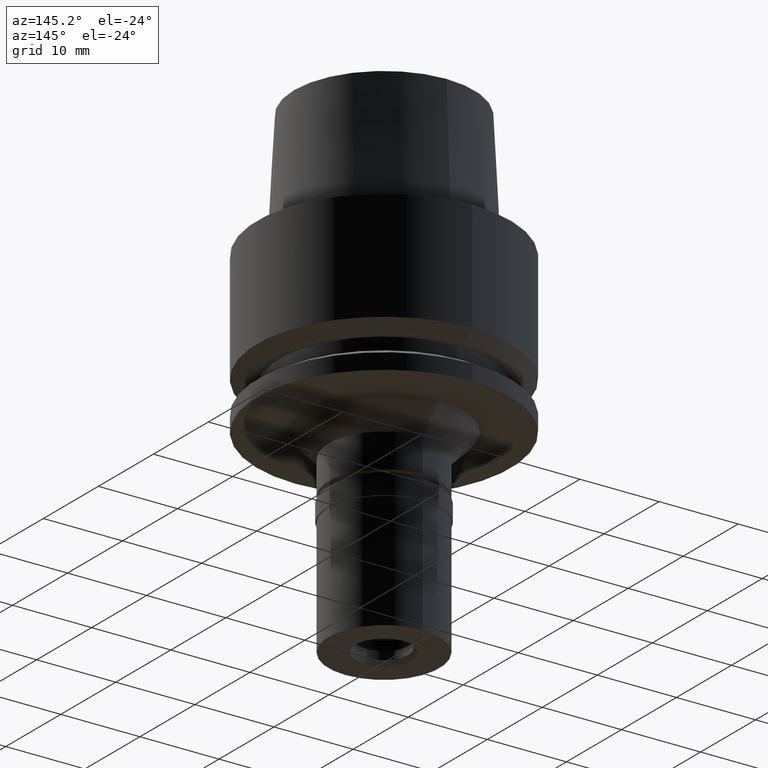
[diagram: clean part render]
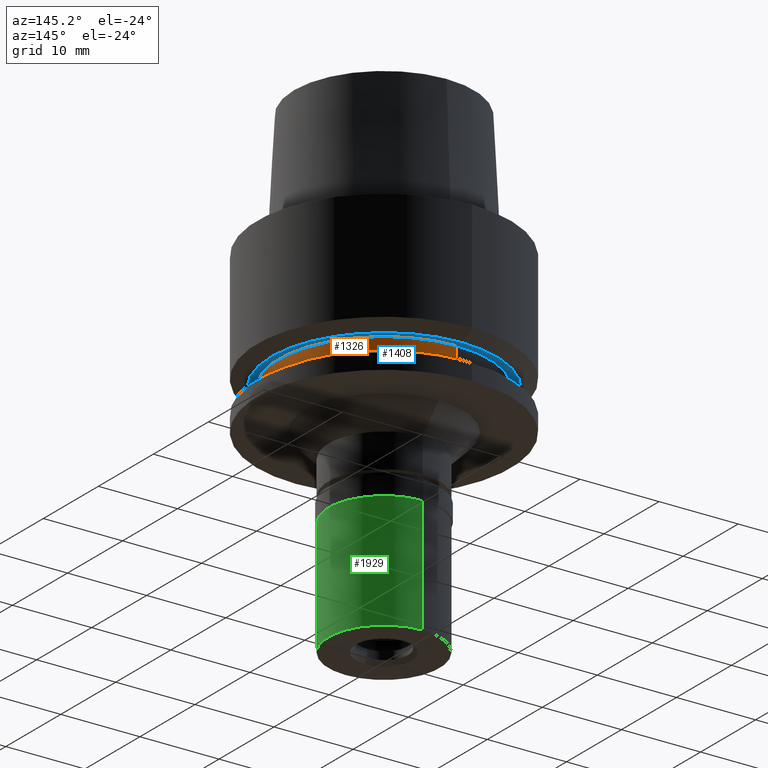
[diagram: same view with three faces highlighted in distinct colors, each labeled with its STEP entity id]
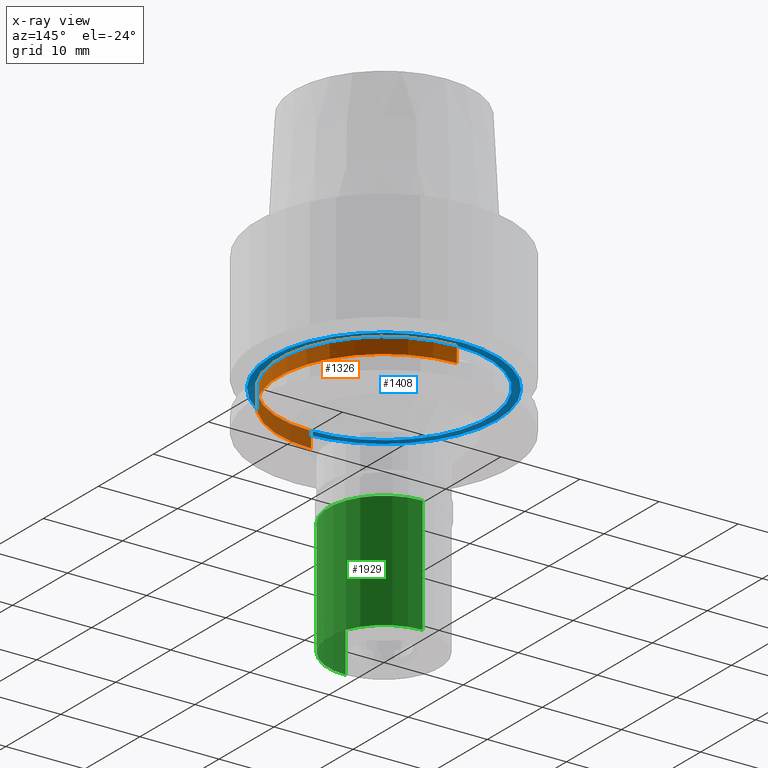
[diagram: x-ray of the same camera — body ghosted, the three highlighted faces saturated]
A machine part, auxiliary view with three faces highlighted in distinct colors.
The next image is the same camera in x-ray (body ghosted, the three faces saturated) — at least one of them is partly hidden behind the body in this view.
Their STEP definitions:

[orange] entity #1326 — the highlighted cylindrical surface (partial cylindrical patch) has radius 13.25 mm, axis along (0, 0, 1).
#51 = CARTESIAN_POINT ( 'NONE',  ( 0.0000000000000000000, 13.25000000000000000, -15.00000000000000000 ) ) ;
#57 = EDGE_CURVE ( 'NONE', #1037, #684, #612, .T. ) ;
#61 = LINE ( 'NONE', #900, #621 ) ;
#282 = CYLINDRICAL_SURFACE ( 'NONE', #1501, 13.25000000000000000 ) ;
#343 = EDGE_CURVE ( 'NONE', #1037, #715, #526, .T. ) ;
#472 = VECTOR ( 'NONE', #906, 1000.000000000000000 ) ;
#473 = ORIENTED_EDGE ( 'NONE', *, *, #57, .F. ) ;
#526 = CIRCLE ( 'NONE', #1345, 13.25000000000000000 ) ;
#554 = DIRECTION ( 'NONE',  ( 0.0000000000000000000, 1.000000000000000000, 0.0000000000000000000 ) ) ;
#612 = LINE ( 'NONE', #51, #472 ) ;
#613 = EDGE_CURVE ( 'NONE', #715, #1523, #61, .T. ) ;
#621 = VECTOR ( 'NONE', #1732, 1000.000000000000000 ) ;
#684 = VERTEX_POINT ( 'NONE', #1759 ) ;
#689 = CARTESIAN_POINT ( 'NONE',  ( 0.0000000000000000000, -13.25000000000000000, -17.00000000000000000 ) ) ;
#715 = VERTEX_POINT ( 'NONE', #2610 ) ;
#733 = ORIENTED_EDGE ( 'NONE', *, *, #2569, .T. ) ;
#900 = CARTESIAN_POINT ( 'NONE',  ( 0.0000000000000000000, -13.25000000000000000, -15.00000000000000000 ) ) ;
#906 = DIRECTION ( 'NONE',  ( 0.0000000000000000000, 0.0000000000000000000, -1.000000000000000000 ) ) ;
#990 = CARTESIAN_POINT ( 'NONE',  ( 0.0000000000000000000, 0.0000000000000000000, -17.00000000000000000 ) ) ;
#1037 = VERTEX_POINT ( 'NONE', #1614 ) ;
#1130 = CARTESIAN_POINT ( 'NONE',  ( 0.0000000000000000000, 0.0000000000000000000, -43.85000000000000142 ) ) ;
#1251 = ORIENTED_EDGE ( 'NONE', *, *, #613, .T. ) ;
#1326 = ADVANCED_FACE ( 'NONE', ( #1381 ), #282, .T. ) ;
#1345 = AXIS2_PLACEMENT_3D ( 'NONE', #1751, #2585, #2031 ) ;
#1377 = ORIENTED_EDGE ( 'NONE', *, *, #343, .T. ) ;
#1381 = FACE_OUTER_BOUND ( 'NONE', #1622, .T. ) ;
#1428 = CIRCLE ( 'NONE', #2650, 13.25000000000000000 ) ;
#1501 = AXIS2_PLACEMENT_3D ( 'NONE', #1130, #1586, #554 ) ;
#1523 = VERTEX_POINT ( 'NONE', #689 ) ;
#1586 = DIRECTION ( 'NONE',  ( 0.0000000000000000000, 0.0000000000000000000, 1.000000000000000000 ) ) ;
#1614 = CARTESIAN_POINT ( 'NONE',  ( 0.0000000000000000000, 13.25000000000000000, -15.00000000000000000 ) ) ;
#1622 = EDGE_LOOP ( 'NONE', ( #1377, #1251, #733, #473 ) ) ;
#1732 = DIRECTION ( 'NONE',  ( 0.0000000000000000000, 0.0000000000000000000, -1.000000000000000000 ) ) ;
#1751 = CARTESIAN_POINT ( 'NONE',  ( 0.0000000000000000000, 0.0000000000000000000, -15.00000000000000000 ) ) ;
#1759 = CARTESIAN_POINT ( 'NONE',  ( 0.0000000000000000000, 13.25000000000000000, -17.00000000000000000 ) ) ;
#2031 = DIRECTION ( 'NONE',  ( 0.0000000000000000000, 1.000000000000000000, 0.0000000000000000000 ) ) ;
#2217 = DIRECTION ( 'NONE',  ( 0.0000000000000000000, -1.000000000000000000, 0.0000000000000000000 ) ) ;
#2406 = DIRECTION ( 'NONE',  ( 0.0000000000000000000, 0.0000000000000000000, 1.000000000000000000 ) ) ;
#2569 = EDGE_CURVE ( 'NONE', #1523, #684, #1428, .T. ) ;
#2585 = DIRECTION ( 'NONE',  ( 0.0000000000000000000, 0.0000000000000000000, -1.000000000000000000 ) ) ;
#2610 = CARTESIAN_POINT ( 'NONE',  ( 0.0000000000000000000, -13.25000000000000000, -15.00000000000000000 ) ) ;
#2650 = AXIS2_PLACEMENT_3D ( 'NONE', #990, #2406, #2217 ) ;

[blue] entity #1408 — the highlighted planar face has unit normal (0, 0, 1).
#50 = ORIENTED_EDGE ( 'NONE', *, *, #2027, .F. ) ;
#114 = CIRCLE ( 'NONE', #854, 14.23205080756999941 ) ;
#115 = DIRECTION ( 'NONE',  ( 0.0000000000000000000, 0.0000000000000000000, -1.000000000000000000 ) ) ;
#135 = CARTESIAN_POINT ( 'NONE',  ( 0.0000000000000000000, -14.23205080756999941, -15.00000000000000000 ) ) ;
#246 = EDGE_LOOP ( 'NONE', ( #2124, #1207 ) ) ;
#343 = EDGE_CURVE ( 'NONE', #1037, #715, #526, .T. ) ;
#379 = CARTESIAN_POINT ( 'NONE',  ( 0.0000000000000000000, 0.0000000000000000000, -15.00000000000000000 ) ) ;
#526 = CIRCLE ( 'NONE', #1345, 13.25000000000000000 ) ;
#713 = CIRCLE ( 'NONE', #763, 14.23205080756999941 ) ;
#715 = VERTEX_POINT ( 'NONE', #2610 ) ;
#732 = DIRECTION ( 'NONE',  ( 0.0000000000000000000, 0.0000000000000000000, 1.000000000000000000 ) ) ;
#763 = AXIS2_PLACEMENT_3D ( 'NONE', #2037, #732, #2651 ) ;
#802 = DIRECTION ( 'NONE',  ( 0.0000000000000000000, 0.0000000000000000000, 1.000000000000000000 ) ) ;
#852 = CIRCLE ( 'NONE', #1277, 13.25000000000000000 ) ;
#854 = AXIS2_PLACEMENT_3D ( 'NONE', #379, #802, #1632 ) ;
#855 = ORIENTED_EDGE ( 'NONE', *, *, #1144, .F. ) ;
#892 = DIRECTION ( 'NONE',  ( 0.0000000000000000000, -1.000000000000000000, 0.0000000000000000000 ) ) ;
#908 = CARTESIAN_POINT ( 'NONE',  ( 0.0000000000000000000, 0.0000000000000000000, -15.00000000000000000 ) ) ;
#1036 = VERTEX_POINT ( 'NONE', #135 ) ;
#1037 = VERTEX_POINT ( 'NONE', #1614 ) ;
#1123 = EDGE_LOOP ( 'NONE', ( #855, #50 ) ) ;
#1144 = EDGE_CURVE ( 'NONE', #1261, #1036, #713, .T. ) ;
#1153 = AXIS2_PLACEMENT_3D ( 'NONE', #1543, #1157, #1780 ) ;
#1157 = DIRECTION ( 'NONE',  ( 0.0000000000000000000, 0.0000000000000000000, 1.000000000000000000 ) ) ;
#1207 = ORIENTED_EDGE ( 'NONE', *, *, #1747, .F. ) ;
#1261 = VERTEX_POINT ( 'NONE', #1313 ) ;
#1277 = AXIS2_PLACEMENT_3D ( 'NONE', #908, #115, #892 ) ;
#1313 = CARTESIAN_POINT ( 'NONE',  ( 0.0000000000000000000, 14.23205080756999941, -15.00000000000000000 ) ) ;
#1345 = AXIS2_PLACEMENT_3D ( 'NONE', #1751, #2585, #2031 ) ;
#1352 = FACE_OUTER_BOUND ( 'NONE', #1123, .T. ) ;
#1408 = ADVANCED_FACE ( 'NONE', ( #1352, #2175 ), #2611, .F. ) ;
#1543 = CARTESIAN_POINT ( 'NONE',  ( 0.0000000000000000000, 0.0000000000000000000, -15.00000000000000000 ) ) ;
#1614 = CARTESIAN_POINT ( 'NONE',  ( 0.0000000000000000000, 13.25000000000000000, -15.00000000000000000 ) ) ;
#1632 = DIRECTION ( 'NONE',  ( 0.0000000000000000000, -1.000000000000000000, 0.0000000000000000000 ) ) ;
#1747 = EDGE_CURVE ( 'NONE', #715, #1037, #852, .T. ) ;
#1751 = CARTESIAN_POINT ( 'NONE',  ( 0.0000000000000000000, 0.0000000000000000000, -15.00000000000000000 ) ) ;
#1780 = DIRECTION ( 'NONE',  ( 1.000000000000000000, 0.0000000000000000000, 0.0000000000000000000 ) ) ;
#2027 = EDGE_CURVE ( 'NONE', #1036, #1261, #114, .T. ) ;
#2031 = DIRECTION ( 'NONE',  ( 0.0000000000000000000, 1.000000000000000000, 0.0000000000000000000 ) ) ;
#2037 = CARTESIAN_POINT ( 'NONE',  ( 0.0000000000000000000, 0.0000000000000000000, -15.00000000000000000 ) ) ;
#2124 = ORIENTED_EDGE ( 'NONE', *, *, #343, .F. ) ;
#2175 = FACE_BOUND ( 'NONE', #246, .T. ) ;
#2585 = DIRECTION ( 'NONE',  ( 0.0000000000000000000, 0.0000000000000000000, -1.000000000000000000 ) ) ;
#2610 = CARTESIAN_POINT ( 'NONE',  ( 0.0000000000000000000, -13.25000000000000000, -15.00000000000000000 ) ) ;
#2611 = PLANE ( 'NONE',  #1153 ) ;
#2651 = DIRECTION ( 'NONE',  ( 0.0000000000000000000, 1.000000000000000000, 0.0000000000000000000 ) ) ;

[green] entity #1929 — the highlighted cylindrical surface (partial cylindrical patch) has radius 7 mm, axis along (0, 0, 1).
#182 = ORIENTED_EDGE ( 'NONE', *, *, #1809, .T. ) ;
#262 = EDGE_CURVE ( 'NONE', #1439, #997, #1390, .T. ) ;
#290 = CARTESIAN_POINT ( 'NONE',  ( 0.0000000000000000000, 0.0000000000000000000, -2.299999999999999822 ) ) ;
#304 = ORIENTED_EDGE ( 'NONE', *, *, #2262, .T. ) ;
#322 = VERTEX_POINT ( 'NONE', #2409 ) ;
#353 = DIRECTION ( 'NONE',  ( 0.0000000000000000000, 0.0000000000000000000, -1.000000000000000000 ) ) ;
#485 = DIRECTION ( 'NONE',  ( 0.0000000000000000000, 1.000000000000000000, 0.0000000000000000000 ) ) ;
#567 = DIRECTION ( 'NONE',  ( 0.0000000000000000000, 0.0000000000000000000, -1.000000000000000000 ) ) ;
#578 = DIRECTION ( 'NONE',  ( 0.0000000000000000000, 0.0000000000000000000, 1.000000000000000000 ) ) ;
#738 = CARTESIAN_POINT ( 'NONE',  ( 0.0000000000000000000, 7.000000000000000000, -2.299999999999999822 ) ) ;
#771 = CIRCLE ( 'NONE', #1869, 7.000000000000000000 ) ;
#873 = EDGE_LOOP ( 'NONE', ( #182, #2563, #304, #2545 ) ) ;
#928 = DIRECTION ( 'NONE',  ( 0.0000000000000000000, -1.000000000000000000, 0.0000000000000000000 ) ) ;
#997 = VERTEX_POINT ( 'NONE', #1595 ) ;
#1001 = EDGE_CURVE ( 'NONE', #1793, #322, #2233, .T. ) ;
#1211 = VECTOR ( 'NONE', #353, 1000.000000000000000 ) ;
#1231 = CIRCLE ( 'NONE', #1938, 7.000000000000000000 ) ;
#1342 = DIRECTION ( 'NONE',  ( 0.0000000000000000000, 0.0000000000000000000, -1.000000000000000000 ) ) ;
#1390 = LINE ( 'NONE', #2221, #1211 ) ;
#1391 = CARTESIAN_POINT ( 'NONE',  ( 0.0000000000000000000, 0.0000000000000000000, -17.85000000000000142 ) ) ;
#1439 = VERTEX_POINT ( 'NONE', #738 ) ;
#1592 = FACE_OUTER_BOUND ( 'NONE', #873, .T. ) ;
#1595 = CARTESIAN_POINT ( 'NONE',  ( 0.0000000000000000000, 7.000000000000000000, -17.00000000000000000 ) ) ;
#1793 = VERTEX_POINT ( 'NONE', #1943 ) ;
#1809 = EDGE_CURVE ( 'NONE', #1439, #1793, #1231, .T. ) ;
#1867 = AXIS2_PLACEMENT_3D ( 'NONE', #1391, #578, #2222 ) ;
#1869 = AXIS2_PLACEMENT_3D ( 'NONE', #2372, #2177, #928 ) ;
#1929 = ADVANCED_FACE ( 'NONE', ( #1592 ), #2465, .T. ) ;
#1938 = AXIS2_PLACEMENT_3D ( 'NONE', #290, #1342, #485 ) ;
#1943 = CARTESIAN_POINT ( 'NONE',  ( 0.0000000000000000000, -7.000000000000000000, -2.299999999999999822 ) ) ;
#2177 = DIRECTION ( 'NONE',  ( 0.0000000000000000000, 0.0000000000000000000, 1.000000000000000000 ) ) ;
#2221 = CARTESIAN_POINT ( 'NONE',  ( 0.0000000000000000000, 7.000000000000000000, -2.299999999999999822 ) ) ;
#2222 = DIRECTION ( 'NONE',  ( 0.0000000000000000000, 1.000000000000000000, 0.0000000000000000000 ) ) ;
#2225 = CARTESIAN_POINT ( 'NONE',  ( 0.0000000000000000000, -7.000000000000000000, -2.299999999999999822 ) ) ;
#2233 = LINE ( 'NONE', #2225, #2241 ) ;
#2241 = VECTOR ( 'NONE', #567, 1000.000000000000000 ) ;
#2262 = EDGE_CURVE ( 'NONE', #322, #997, #771, .T. ) ;
#2372 = CARTESIAN_POINT ( 'NONE',  ( 0.0000000000000000000, 0.0000000000000000000, -17.00000000000000000 ) ) ;
#2409 = CARTESIAN_POINT ( 'NONE',  ( 0.0000000000000000000, -7.000000000000000000, -17.00000000000000000 ) ) ;
#2465 = CYLINDRICAL_SURFACE ( 'NONE', #1867, 7.000000000000000000 ) ;
#2545 = ORIENTED_EDGE ( 'NONE', *, *, #262, .F. ) ;
#2563 = ORIENTED_EDGE ( 'NONE', *, *, #1001, .T. ) ;